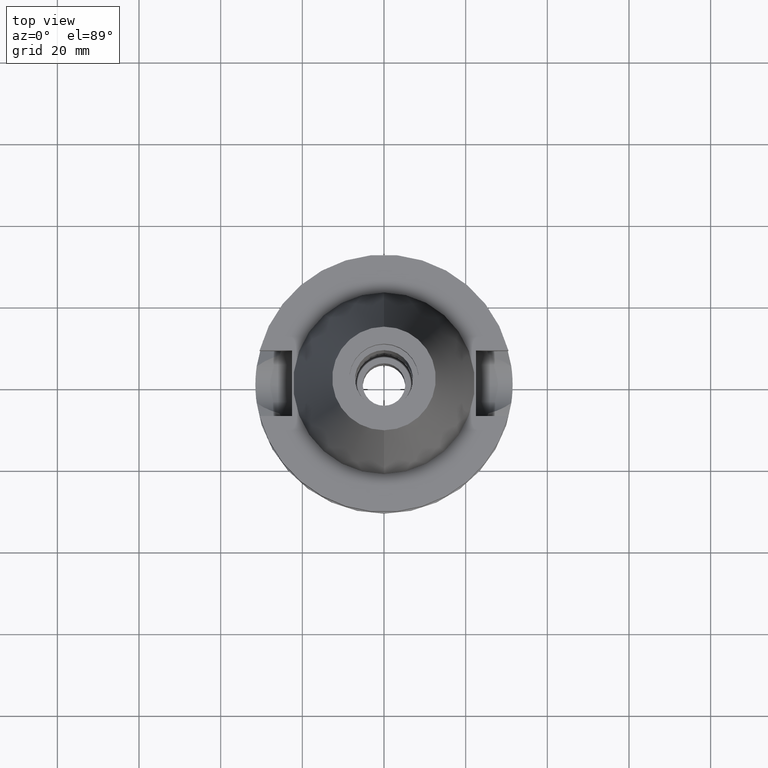
[diagram: clean part render]
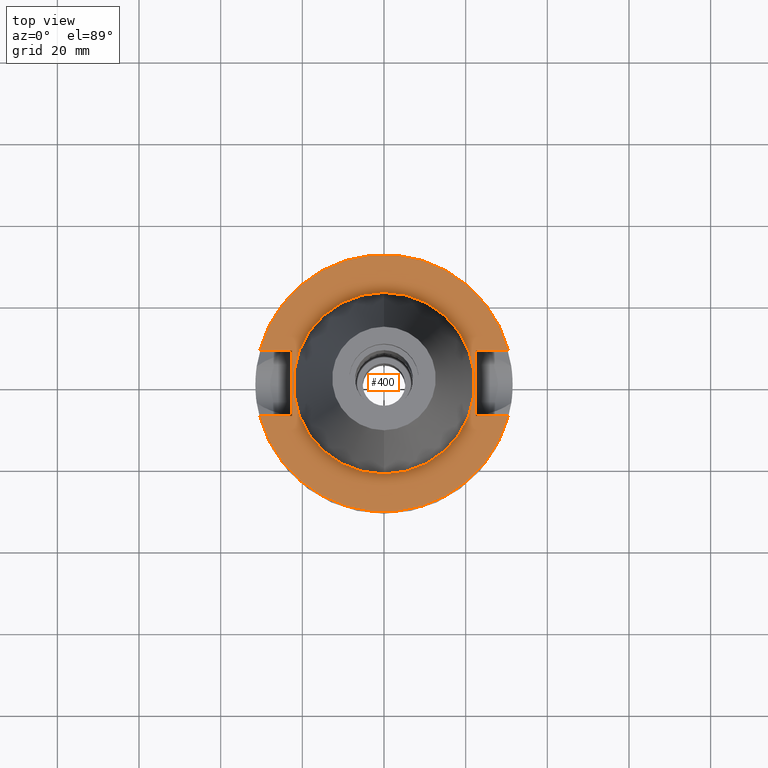
[diagram: same view with one face highlighted and labeled with its STEP entity id]
A machine part, top view. The second image highlights one B-rep face of the part: STEP entity #400.
In plain terms, the highlighted planar face has unit normal (0, 0, -1).
Its self-contained STEP definition (entity closure, byte-faithful):
#3 = ORIENTED_EDGE ( 'NONE', *, *, #1096, .F. ) ;
#6 = ORIENTED_EDGE ( 'NONE', *, *, #369, .F. ) ;
#98 = CARTESIAN_POINT ( 'NONE',  ( 0.0000000000000000000, 0.0000000000000000000, -1.000000000000000000 ) ) ;
#99 = VECTOR ( 'NONE', #332, 1000.000000000000000 ) ;
#155 = DIRECTION ( 'NONE',  ( 0.0000000000000000000, -1.000000000000000000, 0.0000000000000000000 ) ) ;
#160 = VERTEX_POINT ( 'NONE', #3055 ) ;
#189 = PLANE ( 'NONE',  #1933 ) ;
#207 = LINE ( 'NONE', #2396, #2520 ) ;
#255 = VERTEX_POINT ( 'NONE', #1470 ) ;
#263 = CIRCLE ( 'NONE', #2431, 22.22500000000000142 ) ;
#276 = CARTESIAN_POINT ( 'NONE',  ( 22.50000000000000000, 8.050000000000000711, -1.000000000000000000 ) ) ;
#331 = ORIENTED_EDGE ( 'NONE', *, *, #2337, .T. ) ;
#332 = DIRECTION ( 'NONE',  ( 1.000000000000000000, -3.506251283225999947E-14, 0.0000000000000000000 ) ) ;
#337 = ORIENTED_EDGE ( 'NONE', *, *, #3095, .F. ) ;
#369 = EDGE_CURVE ( 'NONE', #160, #1652, #1129, .T. ) ;
#400 = ADVANCED_FACE ( 'NONE', ( #2334, #2793 ), #189, .F. ) ;
#418 = AXIS2_PLACEMENT_3D ( 'NONE', #1534, #2493, #1394 ) ;
#515 = ORIENTED_EDGE ( 'NONE', *, *, #3045, .F. ) ;
#525 = VERTEX_POINT ( 'NONE', #3009 ) ;
#528 = EDGE_CURVE ( 'NONE', #2685, #2226, #3060, .T. ) ;
#534 = DIRECTION ( 'NONE',  ( 0.0000000000000000000, -1.000000000000000000, 0.0000000000000000000 ) ) ;
#549 = CARTESIAN_POINT ( 'NONE',  ( 22.50000000000000000, 8.050000000000000711, -1.000000000000000000 ) ) ;
#555 = EDGE_CURVE ( 'NONE', #1376, #525, #263, .T. ) ;
#657 = EDGE_CURVE ( 'NONE', #2685, #255, #2231, .T. ) ;
#669 = CARTESIAN_POINT ( 'NONE',  ( -30.45402272279000044, 8.050000000000000711, -1.000000000000000000 ) ) ;
#728 = CARTESIAN_POINT ( 'NONE',  ( -22.50000000000000000, -8.050000000000000711, -1.000000000000000000 ) ) ;
#811 = ORIENTED_EDGE ( 'NONE', *, *, #657, .F. ) ;
#824 = DIRECTION ( 'NONE',  ( 0.0000000000000000000, 0.0000000000000000000, -1.000000000000000000 ) ) ;
#833 = DIRECTION ( 'NONE',  ( 0.0000000000000000000, 1.000000000000000000, 0.0000000000000000000 ) ) ;
#938 = VERTEX_POINT ( 'NONE', #549 ) ;
#996 = ORIENTED_EDGE ( 'NONE', *, *, #1804, .F. ) ;
#1056 = DIRECTION ( 'NONE',  ( 0.0000000000000000000, 1.000000000000000000, 0.0000000000000000000 ) ) ;
#1067 = CARTESIAN_POINT ( 'NONE',  ( 0.0000000000000000000, 0.0000000000000000000, -1.000000000000000000 ) ) ;
#1072 = CARTESIAN_POINT ( 'NONE',  ( -30.45402272279000044, -8.050000000000000711, -1.000000000000000000 ) ) ;
#1096 = EDGE_CURVE ( 'NONE', #938, #2940, #1978, .T. ) ;
#1129 = CIRCLE ( 'NONE', #418, 31.50000000000000000 ) ;
#1171 = ORIENTED_EDGE ( 'NONE', *, *, #555, .F. ) ;
#1177 = EDGE_LOOP ( 'NONE', ( #996, #6, #337, #3, #331, #811, #1710, #515 ) ) ;
#1264 = VECTOR ( 'NONE', #2000, 1000.000000000000000 ) ;
#1276 = CARTESIAN_POINT ( 'NONE',  ( -22.50000000000000000, -8.050000000000000711, -1.000000000000000000 ) ) ;
#1376 = VERTEX_POINT ( 'NONE', #3042 ) ;
#1393 = DIRECTION ( 'NONE',  ( 1.000000000000000000, 3.550916904668000126E-14, 0.0000000000000000000 ) ) ;
#1394 = DIRECTION ( 'NONE',  ( 0.0000000000000000000, -1.000000000000000000, 0.0000000000000000000 ) ) ;
#1470 = CARTESIAN_POINT ( 'NONE',  ( 30.45402272279000044, 8.050000000000000711, -1.000000000000000000 ) ) ;
#1497 = EDGE_LOOP ( 'NONE', ( #2963, #1171 ) ) ;
#1508 = LINE ( 'NONE', #2480, #99 ) ;
#1534 = CARTESIAN_POINT ( 'NONE',  ( 0.0000000000000000000, 0.0000000000000000000, -1.000000000000000000 ) ) ;
#1589 = VERTEX_POINT ( 'NONE', #728 ) ;
#1652 = VERTEX_POINT ( 'NONE', #2439 ) ;
#1710 = ORIENTED_EDGE ( 'NONE', *, *, #528, .T. ) ;
#1796 = DIRECTION ( 'NONE',  ( 1.000000000000000000, -3.550916904668000126E-14, 0.0000000000000000000 ) ) ;
#1804 = EDGE_CURVE ( 'NONE', #1652, #1589, #2046, .T. ) ;
#1927 = VECTOR ( 'NONE', #534, 1000.000000000000000 ) ;
#1930 = DIRECTION ( 'NONE',  ( 1.000000000000000000, 3.595582526110999949E-14, 0.0000000000000000000 ) ) ;
#1933 = AXIS2_PLACEMENT_3D ( 'NONE', #2776, #2826, #2542 ) ;
#1978 = LINE ( 'NONE', #276, #1927 ) ;
#1993 = CARTESIAN_POINT ( 'NONE',  ( -30.45402272279000044, 8.050000000000000711, -1.000000000000000000 ) ) ;
#2000 = DIRECTION ( 'NONE',  ( 0.0000000000000000000, 1.000000000000000000, 0.0000000000000000000 ) ) ;
#2026 = DIRECTION ( 'NONE',  ( 0.0000000000000000000, 0.0000000000000000000, 1.000000000000000000 ) ) ;
#2046 = LINE ( 'NONE', #1072, #2266 ) ;
#2090 = DIRECTION ( 'NONE',  ( 0.0000000000000000000, 0.0000000000000000000, 1.000000000000000000 ) ) ;
#2226 = VERTEX_POINT ( 'NONE', #2763 ) ;
#2231 = CIRCLE ( 'NONE', #2938, 31.50000000000000000 ) ;
#2266 = VECTOR ( 'NONE', #1796, 1000.000000000000000 ) ;
#2334 = FACE_OUTER_BOUND ( 'NONE', #1177, .T. ) ;
#2337 = EDGE_CURVE ( 'NONE', #938, #255, #1508, .T. ) ;
#2396 = CARTESIAN_POINT ( 'NONE',  ( 22.50000000000000000, -8.050000000000000711, -1.000000000000000000 ) ) ;
#2397 = EDGE_CURVE ( 'NONE', #525, #1376, #2578, .T. ) ;
#2431 = AXIS2_PLACEMENT_3D ( 'NONE', #3026, #2090, #155 ) ;
#2439 = CARTESIAN_POINT ( 'NONE',  ( -30.45402272279000044, -8.050000000000000711, -1.000000000000000000 ) ) ;
#2480 = CARTESIAN_POINT ( 'NONE',  ( 22.50000000000000000, 8.050000000000000711, -1.000000000000000000 ) ) ;
#2493 = DIRECTION ( 'NONE',  ( 0.0000000000000000000, 0.0000000000000000000, -1.000000000000000000 ) ) ;
#2520 = VECTOR ( 'NONE', #1930, 1000.000000000000000 ) ;
#2534 = VECTOR ( 'NONE', #1393, 1000.000000000000000 ) ;
#2542 = DIRECTION ( 'NONE',  ( 0.0000000000000000000, -1.000000000000000000, 0.0000000000000000000 ) ) ;
#2578 = CIRCLE ( 'NONE', #2767, 22.22500000000000142 ) ;
#2658 = LINE ( 'NONE', #1276, #1264 ) ;
#2685 = VERTEX_POINT ( 'NONE', #1993 ) ;
#2763 = CARTESIAN_POINT ( 'NONE',  ( -22.50000000000000000, 8.050000000000000711, -1.000000000000000000 ) ) ;
#2767 = AXIS2_PLACEMENT_3D ( 'NONE', #1067, #2026, #833 ) ;
#2776 = CARTESIAN_POINT ( 'NONE',  ( 0.0000000000000000000, 0.0000000000000000000, -1.000000000000000000 ) ) ;
#2777 = CARTESIAN_POINT ( 'NONE',  ( 22.50000000000000000, -8.050000000000000711, -1.000000000000000000 ) ) ;
#2793 = FACE_BOUND ( 'NONE', #1497, .T. ) ;
#2826 = DIRECTION ( 'NONE',  ( 0.0000000000000000000, 0.0000000000000000000, -1.000000000000000000 ) ) ;
#2938 = AXIS2_PLACEMENT_3D ( 'NONE', #98, #824, #1056 ) ;
#2940 = VERTEX_POINT ( 'NONE', #2777 ) ;
#2963 = ORIENTED_EDGE ( 'NONE', *, *, #2397, .F. ) ;
#3009 = CARTESIAN_POINT ( 'NONE',  ( 0.0000000000000000000, 22.22500000000000142, -1.000000000000000000 ) ) ;
#3026 = CARTESIAN_POINT ( 'NONE',  ( 0.0000000000000000000, 0.0000000000000000000, -1.000000000000000000 ) ) ;
#3042 = CARTESIAN_POINT ( 'NONE',  ( 0.0000000000000000000, -22.22500000000000142, -1.000000000000000000 ) ) ;
#3045 = EDGE_CURVE ( 'NONE', #1589, #2226, #2658, .T. ) ;
#3055 = CARTESIAN_POINT ( 'NONE',  ( 30.45402272279000044, -8.050000000000000711, -1.000000000000000000 ) ) ;
#3060 = LINE ( 'NONE', #669, #2534 ) ;
#3095 = EDGE_CURVE ( 'NONE', #2940, #160, #207, .T. ) ;